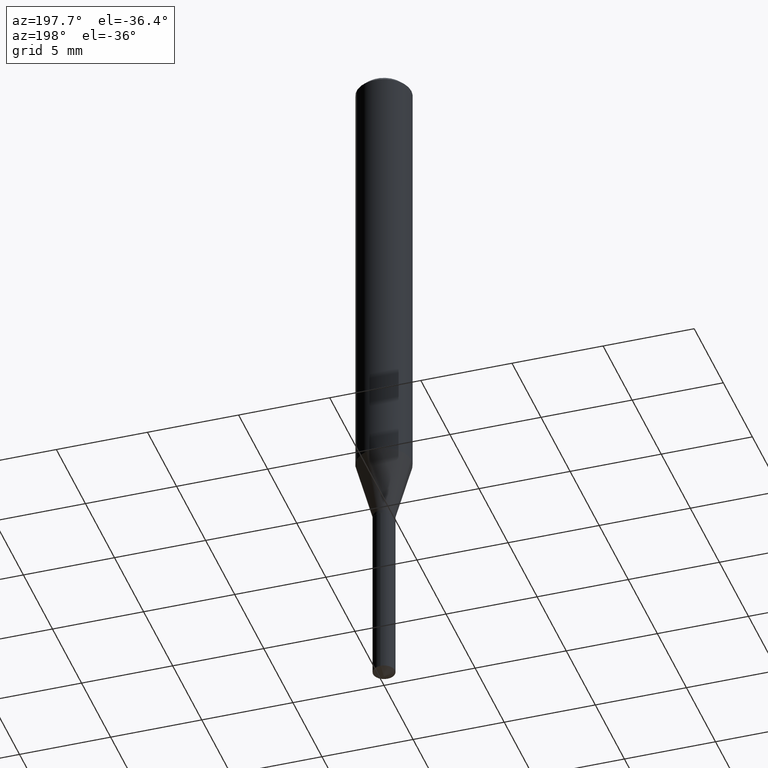
[diagram: clean part render]
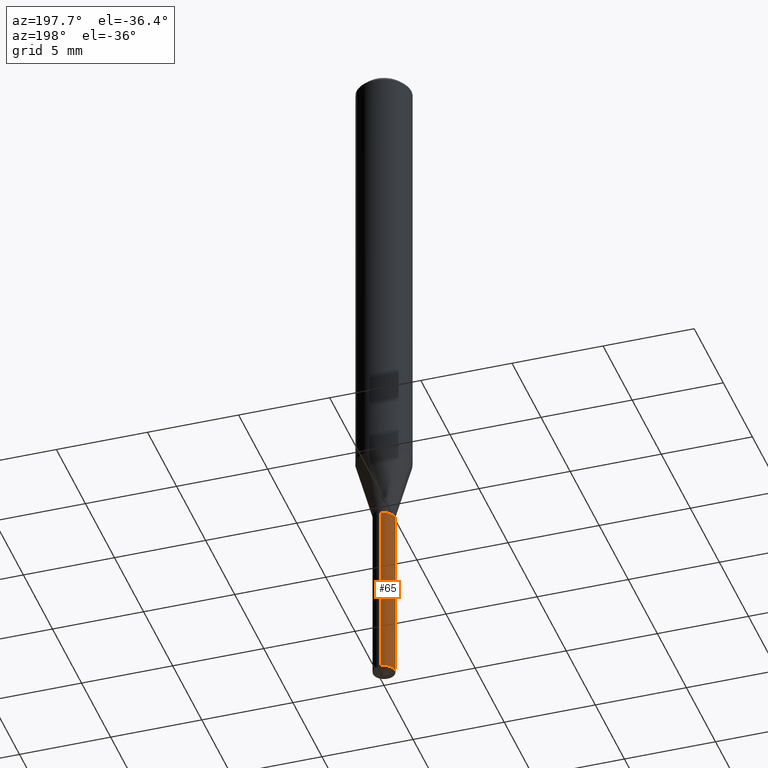
[diagram: same view with one face highlighted and labeled with its STEP entity id]
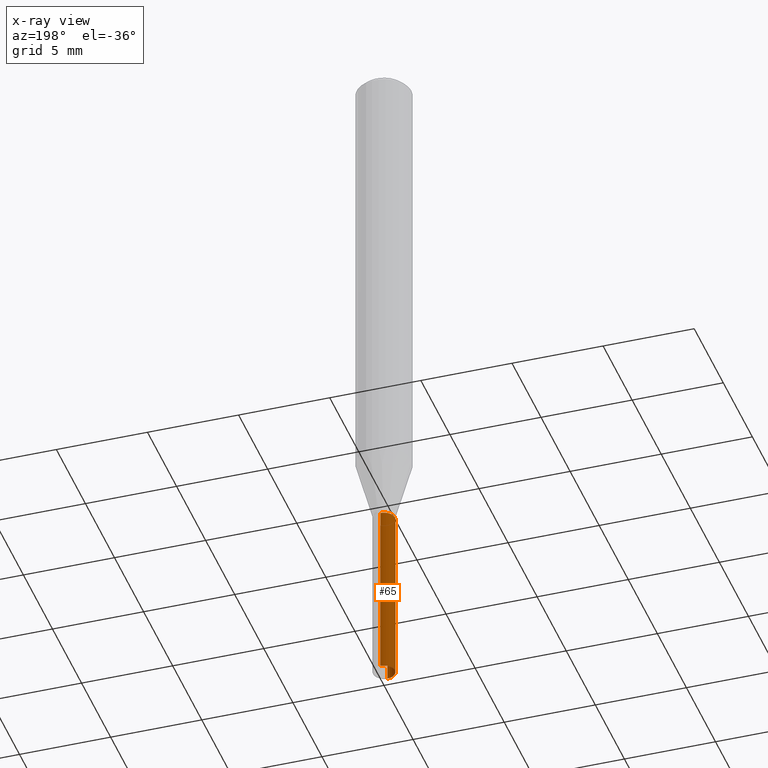
[diagram: x-ray of the same camera — body ghosted, the highlighted face saturated]
A machine part, auxiliary view. The second image highlights one B-rep face of the part: STEP entity #65.
The next image is the same camera in x-ray: the body ghosted, the highlighted face saturated — about 0% of this face is hidden behind the body in this view.
In plain terms, the highlighted cylindrical surface (edge-blend (fillet) strip) has radius 0.5994 mm, axis along (-0, 0, 1).
Its self-contained STEP definition (entity closure, byte-faithful):
#1 = VERTEX_POINT ( 'NONE', #266 ) ;
#16 = AXIS2_PLACEMENT_3D ( 'NONE', #189, #344, #263 ) ;
#27 = DIRECTION ( 'NONE',  ( -2.445402730703145379E-29, 3.491575962694140016E-15, 1.000000000000000000 ) ) ;
#61 = EDGE_CURVE ( 'NONE', #1, #465, #437, .T. ) ;
#65 = ADVANCED_FACE ( 'NONE', ( #227 ), #462, .T. ) ;
#74 = ORIENTED_EDGE ( 'NONE', *, *, #418, .F. ) ;
#75 = DIRECTION ( 'NONE',  ( -2.445402730703145379E-29, 3.491575962694140016E-15, 1.000000000000000000 ) ) ;
#94 = VERTEX_POINT ( 'NONE', #407 ) ;
#109 = DIRECTION ( 'NONE',  ( -6.982962677686265133E-15, -1.000000000000000000, 5.787813545898861862E-15 ) ) ;
#133 = CARTESIAN_POINT ( 'NONE',  ( 1.676880856394103626E-16, 0.02359999999999617959, -1.094500000000000028 ) ) ;
#140 = CARTESIAN_POINT ( 'NONE',  ( -1.647979191933691307E-16, -0.02360000000000382278, -1.094499999999999806 ) ) ;
#149 = ORIENTED_EDGE ( 'NONE', *, *, #315, .T. ) ;
#154 = ORIENTED_EDGE ( 'NONE', *, *, #61, .T. ) ;
#157 = ORIENTED_EDGE ( 'NONE', *, *, #310, .F. ) ;
#167 = LINE ( 'NONE', #282, #434 ) ;
#172 = AXIS2_PLACEMENT_3D ( 'NONE', #401, #308, #322 ) ;
#178 = EDGE_LOOP ( 'NONE', ( #157, #154, #149, #74 ) ) ;
#189 = CARTESIAN_POINT ( 'NONE',  ( 3.631728028533853753E-29, -5.185218924775541926E-15, -1.485095139267541775 ) ) ;
#198 = CARTESIAN_POINT ( 'NONE',  ( -1.647979191933595657E-16, -0.02360000000000518280, -1.485095139267541775 ) ) ;
#227 = FACE_OUTER_BOUND ( 'NONE', #178, .T. ) ;
#236 = CARTESIAN_POINT ( 'NONE',  ( 2.676565608369631794E-29, -3.821426325363822773E-15, -1.094499999999999806 ) ) ;
#252 = VERTEX_POINT ( 'NONE', #140 ) ;
#263 = DIRECTION ( 'NONE',  ( -6.982962677686265133E-15, -1.000000000000000000, 0.000000000000000000 ) ) ;
#266 = CARTESIAN_POINT ( 'NONE',  ( 1.676880856394199276E-16, 0.02359999999999481263, -1.485095139267541775 ) ) ;
#282 = CARTESIAN_POINT ( 'NONE',  ( -1.647979191933691307E-16, -0.02360000000000382278, -1.094499999999999806 ) ) ;
#308 = DIRECTION ( 'NONE',  ( -2.445402730703145379E-29, 3.491575962694140016E-15, 1.000000000000000000 ) ) ;
#310 = EDGE_CURVE ( 'NONE', #1, #94, #369, .T. ) ;
#315 = EDGE_CURVE ( 'NONE', #465, #252, #167, .T. ) ;
#322 = DIRECTION ( 'NONE',  ( -6.982962677686265133E-15, -1.000000000000000000, 5.787813545898861862E-15 ) ) ;
#331 = AXIS2_PLACEMENT_3D ( 'NONE', #236, #75, #109 ) ;
#344 = DIRECTION ( 'NONE',  ( -2.445402730703145379E-29, 3.491575962694140016E-15, 1.000000000000000000 ) ) ;
#369 = LINE ( 'NONE', #133, #484 ) ;
#373 = CIRCLE ( 'NONE', #331, 0.02360000000000000292 ) ;
#401 = CARTESIAN_POINT ( 'NONE',  ( 2.676565608369631794E-29, -3.821426325363822773E-15, -1.094499999999999806 ) ) ;
#407 = CARTESIAN_POINT ( 'NONE',  ( 1.676880856394200262E-16, 0.02359999999999617959, -1.094500000000000028 ) ) ;
#418 = EDGE_CURVE ( 'NONE', #94, #252, #373, .T. ) ;
#434 = VECTOR ( 'NONE', #27, 39.37007874015748143 ) ;
#437 = CIRCLE ( 'NONE', #16, 0.02360000000000000292 ) ;
#462 = CYLINDRICAL_SURFACE ( 'NONE', #172, 0.02360000000000000292 ) ;
#465 = VERTEX_POINT ( 'NONE', #198 ) ;
#484 = VECTOR ( 'NONE', #486, 39.37007874015748143 ) ;
#486 = DIRECTION ( 'NONE',  ( -2.445402730703145379E-29, 3.491575962694140016E-15, 1.000000000000000000 ) ) ;